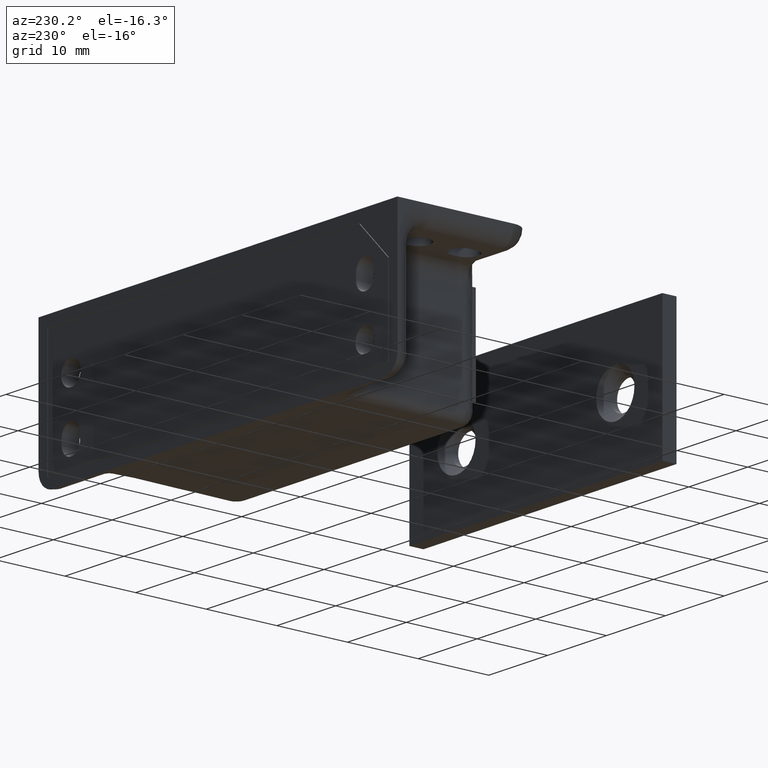
[diagram: clean part render]
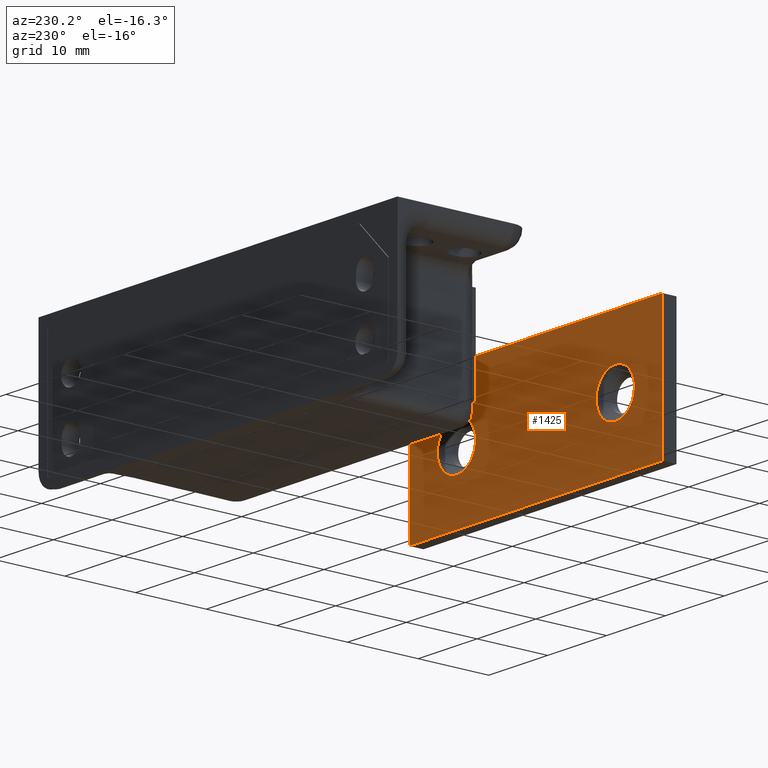
[diagram: same view with one face highlighted and labeled with its STEP entity id]
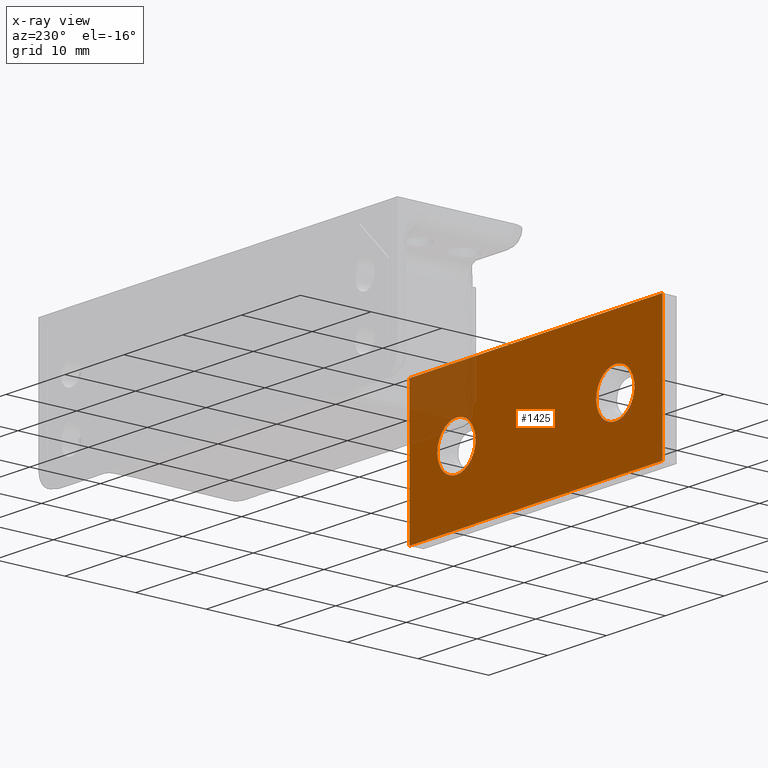
[diagram: x-ray of the same camera — body ghosted, the highlighted face saturated]
A machine part, auxiliary view. The second image highlights one B-rep face of the part: STEP entity #1425.
The next image is the same camera in x-ray: the body ghosted, the highlighted face saturated — about 11% of this face is hidden behind the body in this view.
In plain terms, the highlighted face is a freeform B-spline surface patch.
Its self-contained STEP definition (entity closure, byte-faithful):
#715=CARTESIAN_POINT('',(-11.222045059124790,-45.000000079943341,-2.318063788691977));
#716=VERTEX_POINT('',#715);
#722=CARTESIAN_POINT('',(-13.500000000000160,-44.999999999999957,-3.249999999999874));
#723=VERTEX_POINT('',#722);
#724=CARTESIAN_POINT('',(-13.500000000000160,-44.999999999999957,-3.249999999999874));
#725=CARTESIAN_POINT('',(-13.184461477765790,-45.000000011073581,-3.250127160377355));
#726=CARTESIAN_POINT('',(-12.671823393381390,-45.000000029064289,-3.174725389047770));
#727=CARTESIAN_POINT('',(-11.887910845816380,-45.000000056575203,-2.859529037752179));
#728=CARTESIAN_POINT('',(-11.456367761265380,-45.000000071719938,-2.548575349588518));
#729=CARTESIAN_POINT('',(-11.222045059124790,-45.000000079943341,-2.318063788691977));
#730=B_SPLINE_CURVE_WITH_KNOTS('',3,(#724,#725,#726,#727,#728,#729),.UNSPECIFIED.,.F.,.U.,(4,1,1,4),(0.000000021588629,0.946574546464391,1.538175193060793,2.524197825732992),.UNSPECIFIED.);
#731=EDGE_CURVE('',#723,#716,#730,.T.);
#733=CARTESIAN_POINT('',(-16.750000000000139,-44.999999999999957,-0.000000639644295));
#734=VERTEX_POINT('',#733);
#735=CARTESIAN_POINT('',(-16.750000000000139,-44.999999999999957,-0.000000639644295));
#736=CARTESIAN_POINT('',(-16.750265168047470,-44.999999999999957,-0.372277736585216));
#737=CARTESIAN_POINT('',(-16.634499239561940,-44.999999999999957,-1.036828920619220));
#738=CARTESIAN_POINT('',(-16.220525442184830,-44.999999999999957,-1.834706616000934));
#739=CARTESIAN_POINT('',(-15.789590730326990,-44.999999999999957,-2.327960282632077));
#740=CARTESIAN_POINT('',(-15.336574509738810,-44.999999999999957,-2.699776132834221));
#741=CARTESIAN_POINT('',(-14.884575278396500,-44.999999999999957,-2.959500030471107));
#742=CARTESIAN_POINT('',(-14.244439063898200,-44.999999999999957,-3.188543612609837));
#743=CARTESIAN_POINT('',(-13.792491613064239,-44.999999999999957,-3.250102581651386));
#744=CARTESIAN_POINT('',(-13.500000000000160,-44.999999999999957,-3.249999999999874));
#745=B_SPLINE_CURVE_WITH_KNOTS('',3,(#735,#736,#737,#738,#739,#740,#741,#742,#743,#744),.UNSPECIFIED.,.F.,.U.,(4,1,1,1,1,1,1,4),(0.000000082317197,1.116743867929097,1.994192877790320,2.672207543361630,3.071031397864549,3.749071131874854,4.227682477132281,5.105119733833083),.UNSPECIFIED.);
#746=EDGE_CURVE('',#734,#723,#745,.T.);
#748=CARTESIAN_POINT('',(-15.777954940875530,-45.000000079943341,2.318063788692324));
#749=VERTEX_POINT('',#748);
#750=CARTESIAN_POINT('',(-15.777954940875530,-45.000000079943341,2.318063788692324));
#751=CARTESIAN_POINT('',(-15.960169116024931,-45.000000073771020,2.139089112168543));
#752=CARTESIAN_POINT('',(-16.222700779485471,-45.000000062482350,1.811759072384379));
#753=CARTESIAN_POINT('',(-16.536309829942610,-45.000000041907910,1.215175949524439));
#754=CARTESIAN_POINT('',(-16.711408640178810,-45.000000021788580,0.631789270389717));
#755=CARTESIAN_POINT('',(-16.750006253295432,-45.000000006490048,0.188188104803100));
#756=CARTESIAN_POINT('',(-16.750000000000139,-44.999999999999957,-0.000000639644295));
#757=B_SPLINE_CURVE_WITH_KNOTS('',3,(#750,#751,#752,#753,#754,#755,#756),.UNSPECIFIED.,.F.,.U.,(4,1,1,1,4),(0.000000021220046,0.766214200782917,1.250146628703569,2.016346844209850,2.580922731730874),.UNSPECIFIED.);
#758=EDGE_CURVE('',#749,#734,#757,.T.);
#859=CARTESIAN_POINT('',(-13.500000000000160,-44.999999999999957,3.250000000000215));
#860=VERTEX_POINT('',#859);
#861=CARTESIAN_POINT('',(-13.500000000000160,-44.999999999999957,3.250000000000215));
#862=CARTESIAN_POINT('',(-13.723497436870510,-45.000000007843461,3.250032654851196));
#863=CARTESIAN_POINT('',(-14.131040294981290,-45.000000022145919,3.207791556805104));
#864=CARTESIAN_POINT('',(-14.661855153485099,-45.000000040774530,3.048654582579068));
#865=CARTESIAN_POINT('',(-15.221384532934721,-45.000000060410862,2.783247290525638));
#866=CARTESIAN_POINT('',(-15.571719181428939,-45.000000072705632,2.520865641263543));
#867=CARTESIAN_POINT('',(-15.777954940875530,-45.000000079943341,2.318063788692324));
#868=B_SPLINE_CURVE_WITH_KNOTS('',3,(#861,#862,#863,#864,#865,#866,#867),.UNSPECIFIED.,.F.,.U.,(4,1,1,1,4),(0.000000021589997,0.670490830031464,1.222671377158269,1.656500684397272,2.524197825732984),.UNSPECIFIED.);
#869=EDGE_CURVE('',#860,#749,#868,.T.);
#871=CARTESIAN_POINT('',(-10.250000000000179,-44.999999999999957,0.000000639644660));
#872=VERTEX_POINT('',#871);
#873=CARTESIAN_POINT('',(-10.250000000000179,-44.999999999999957,0.000000639644660));
#874=CARTESIAN_POINT('',(-10.249990514637020,-44.999999999999957,0.186122968574985));
#875=CARTESIAN_POINT('',(-10.285484498345310,-44.999999999999957,0.598249134825735));
#876=CARTESIAN_POINT('',(-10.482182501338650,-44.999999999999957,1.292773976760297));
#877=CARTESIAN_POINT('',(-10.856792939907301,-44.999999999999957,1.944726043222723));
#878=CARTESIAN_POINT('',(-11.317467329754500,-44.999999999999957,2.428405005058954));
#879=CARTESIAN_POINT('',(-11.786218530471700,-44.999999999999957,2.780550973535963));
#880=CARTESIAN_POINT('',(-12.226602676406310,-44.999999999999957,3.005634957701986));
#881=CARTESIAN_POINT('',(-12.822027171042439,-44.999999999999957,3.198264480751728));
#882=CARTESIAN_POINT('',(-13.220804778488910,-44.999999999999957,3.250096567917749));
#883=CARTESIAN_POINT('',(-13.500000000000160,-44.999999999999957,3.250000000000215));
#884=B_SPLINE_CURVE_WITH_KNOTS('',3,(#873,#874,#875,#876,#877,#878,#879,#880,#881,#882,#883),.UNSPECIFIED.,.F.,.U.,(4,1,1,1,1,1,1,1,4),(0.000000082319544,0.558371981313189,1.236395586512447,2.153742586015716,2.791855049923331,3.230582721293282,3.908608507970950,4.267571427410125,5.105119733833067),.UNSPECIFIED.);
#885=EDGE_CURVE('',#872,#860,#884,.T.);
#887=CARTESIAN_POINT('',(-11.222045059124790,-45.000000079943341,-2.318063788691977));
#888=CARTESIAN_POINT('',(-11.039832272305750,-45.000000073770977,-2.139088052094276));
#889=CARTESIAN_POINT('',(-10.743405558940820,-45.000000061026213,-1.769536379262799));
#890=CARTESIAN_POINT('',(-10.468038220894551,-45.000000041815227,-1.212488594156818));
#891=CARTESIAN_POINT('',(-10.293749843719660,-45.000000021787763,-0.631765384513907));
#892=CARTESIAN_POINT('',(-10.249950106138069,-45.000000008344628,-0.241964070200331));
#893=CARTESIAN_POINT('',(-10.250000000000179,-44.999999999999957,0.000000639644660));
#894=B_SPLINE_CURVE_WITH_KNOTS('',3,(#887,#888,#889,#890,#891,#892,#893),.UNSPECIFIED.,.F.,.U.,(4,1,1,1,4),(0.000000021219997,0.766214200783234,1.411441084101627,1.855037263983487,2.580922731730893),.UNSPECIFIED.);
#895=EDGE_CURVE('',#716,#872,#894,.T.);
#920=CARTESIAN_POINT('',(15.777954940875130,-45.000000079943341,-2.318063788692092));
#921=VERTEX_POINT('',#920);
#927=CARTESIAN_POINT('',(13.499999999999760,-44.999999999999957,-3.249999999999988));
#928=VERTEX_POINT('',#927);
#929=CARTESIAN_POINT('',(13.499999999999760,-44.999999999999957,-3.249999999999988));
#930=CARTESIAN_POINT('',(13.868164128547610,-45.000000012920452,-3.250283679674320));
#931=CARTESIAN_POINT('',(14.393831257459860,-45.000000031368401,-3.159639144025503));
#932=CARTESIAN_POINT('',(15.166688473659020,-45.000000058491331,-2.821332943251791));
#933=CARTESIAN_POINT('',(15.552984808613450,-45.000000072048159,-2.539320577579133));
#934=CARTESIAN_POINT('',(15.777954940875130,-45.000000079943341,-2.318063788692092));
#935=B_SPLINE_CURVE_WITH_KNOTS('',3,(#929,#930,#931,#932,#933,#934),.UNSPECIFIED.,.F.,.U.,(4,1,1,4),(0.000000021588973,1.104347709905555,1.577623300870940,2.524197825732988),.UNSPECIFIED.);
#936=EDGE_CURVE('',#928,#921,#935,.T.);
#938=CARTESIAN_POINT('',(10.249999999999780,-44.999999999999957,-0.000000639644410));
#939=VERTEX_POINT('',#938);
#940=CARTESIAN_POINT('',(10.249999999999780,-44.999999999999957,-0.000000639644410));
#941=CARTESIAN_POINT('',(10.249963421555210,-44.999999999999957,-0.226008890386178));
#942=CARTESIAN_POINT('',(10.291785818497480,-44.999999999999957,-0.624824208086963));
#943=CARTESIAN_POINT('',(10.481384267515219,-44.999999999999957,-1.264159676914660));
#944=CARTESIAN_POINT('',(10.797101120177789,-44.999999999999957,-1.854810319613314));
#945=CARTESIAN_POINT('',(11.280727419874809,-44.999999999999957,-2.408530122780424));
#946=CARTESIAN_POINT('',(11.893085282511141,-44.999999999999957,-2.862773786528528));
#947=CARTESIAN_POINT('',(12.649169207564080,-44.999999999999957,-3.175917170983239));
#948=CARTESIAN_POINT('',(13.220814793185379,-44.999999999999957,-3.250073489885173));
#949=CARTESIAN_POINT('',(13.499999999999760,-44.999999999999957,-3.249999999999988));
#950=B_SPLINE_CURVE_WITH_KNOTS('',3,(#940,#941,#942,#943,#944,#945,#946,#947,#948,#949),.UNSPECIFIED.,.F.,.U.,(4,1,1,1,1,1,1,4),(0.000000082319564,0.678019917295202,1.196511575425184,1.994192877791171,2.672207543362048,3.390108212445198,4.267571427410103,5.105119733833092),.UNSPECIFIED.);
#951=EDGE_CURVE('',#939,#928,#950,.T.);
#953=CARTESIAN_POINT('',(11.222045059124390,-45.000000079943341,2.318063788692210));
#954=VERTEX_POINT('',#953);
#955=CARTESIAN_POINT('',(11.222045059124390,-45.000000079943341,2.318063788692210));
#956=CARTESIAN_POINT('',(11.097402140827850,-45.000000075719470,2.195587040801784));
#957=CARTESIAN_POINT('',(10.823770672482750,-45.000000064818259,1.879491892194532));
#958=CARTESIAN_POINT('',(10.534201968921581,-45.000000047422873,1.375089511545744));
#959=CARTESIAN_POINT('',(10.308171145485851,-45.000000025031980,0.725836030300936));
#960=CARTESIAN_POINT('',(10.249918742941871,-45.000000009735572,0.282296252959843));
#961=CARTESIAN_POINT('',(10.249999999999780,-44.999999999999957,-0.000000639644410));
#962=B_SPLINE_CURVE_WITH_KNOTS('',3,(#955,#956,#957,#958,#959,#960,#961),.UNSPECIFIED.,.F.,.U.,(4,1,1,1,4),(0.000000021220425,0.524247196894680,1.250146628704092,1.734054433540918,2.580922731730863),.UNSPECIFIED.);
#963=EDGE_CURVE('',#954,#939,#962,.T.);
#1066=CARTESIAN_POINT('',(13.499999999999760,-44.999999999999957,3.250000000000102));
#1067=VERTEX_POINT('',#1066);
#1068=CARTESIAN_POINT('',(13.499999999999760,-44.999999999999957,3.250000000000102));
#1069=CARTESIAN_POINT('',(13.237055344880410,-45.000000009227833,3.250061653743761));
#1070=CARTESIAN_POINT('',(12.842685460796501,-45.000000023067997,3.201863430864038));
#1071=CARTESIAN_POINT('',(12.277054660651901,-45.000000042918451,3.024780318514063));
#1072=CARTESIAN_POINT('',(11.755306327663449,-45.000000061228867,2.769494415860082));
#1073=CARTESIAN_POINT('',(11.400177414291401,-45.000000073691901,2.493177246440244));
#1074=CARTESIAN_POINT('',(11.222045059124390,-45.000000079943341,2.318063788692210));
#1075=B_SPLINE_CURVE_WITH_KNOTS('',3,(#1068,#1069,#1070,#1071,#1072,#1073,#1074),.UNSPECIFIED.,.F.,.U.,(4,1,1,1,4),(0.000000021588046,0.788815593540211,1.183227439918211,1.774825484923241,2.524197825732991),.UNSPECIFIED.);
#1076=EDGE_CURVE('',#1067,#954,#1075,.T.);
#1078=CARTESIAN_POINT('',(16.749999999999741,-44.999999999999957,0.000000639644542));
#1079=VERTEX_POINT('',#1078);
#1080=CARTESIAN_POINT('',(16.749999999999741,-44.999999999999957,0.000000639644542));
#1081=CARTESIAN_POINT('',(16.750022796431701,-44.999999999999957,0.212708703848546));
#1082=CARTESIAN_POINT('',(16.705487873527229,-44.999999999999957,0.664721832489813));
#1083=CARTESIAN_POINT('',(16.515636956019989,-44.999999999999957,1.264020716561061));
#1084=CARTESIAN_POINT('',(16.191324609250572,-44.999999999999957,1.861929784259768));
#1085=CARTESIAN_POINT('',(15.786027751574521,-44.999999999999957,2.343653483992732));
#1086=CARTESIAN_POINT('',(15.323114100021900,-44.999999999999957,2.704807558292470));
#1087=CARTESIAN_POINT('',(14.813215580504270,-44.999999999999957,2.993739678289158));
#1088=CARTESIAN_POINT('',(14.217908728461261,-44.999999999999957,3.198525875141952));
#1089=CARTESIAN_POINT('',(13.726004926254880,-44.999999999999957,3.250022240779861));
#1090=CARTESIAN_POINT('',(13.499999999999760,-44.999999999999957,3.250000000000102));
#1091=B_SPLINE_CURVE_WITH_KNOTS('',3,(#1080,#1081,#1082,#1083,#1084,#1085,#1086,#1087,#1088,#1089,#1090),.UNSPECIFIED.,.F.,.U.,(4,1,1,1,1,1,1,1,4),(0.000000082319130,0.638128034098369,1.356048898371060,1.874536917344452,2.672207543362038,3.230582721293257,3.629416961037740,4.427096919287699,5.105119733833071),.UNSPECIFIED.);
#1092=EDGE_CURVE('',#1079,#1067,#1091,.T.);
#1094=CARTESIAN_POINT('',(15.777954940875130,-45.000000079943341,-2.318063788692092));
#1095=CARTESIAN_POINT('',(15.950570144113410,-45.000000074095723,-2.148504277078790));
#1096=CARTESIAN_POINT('',(16.214963678950330,-45.000000062871770,-1.823050928299094));
#1097=CARTESIAN_POINT('',(16.506995464268179,-45.000000043996238,-1.275729784443599));
#1098=CARTESIAN_POINT('',(16.700223829327150,-45.000000023641967,-0.685530777309256));
#1099=CARTESIAN_POINT('',(16.750048051697618,-45.000000008344621,-0.241963855505791));
#1100=CARTESIAN_POINT('',(16.749999999999741,-44.999999999999957,0.000000639644542));
#1101=B_SPLINE_CURVE_WITH_KNOTS('',3,(#1094,#1095,#1096,#1097,#1098,#1099,#1100),.UNSPECIFIED.,.F.,.U.,(4,1,1,1,4),(0.000000021219424,0.725885488954059,1.250146628703533,1.855037263983280,2.580922731730894),.UNSPECIFIED.);
#1102=EDGE_CURVE('',#921,#1079,#1101,.T.);
#1374=CARTESIAN_POINT('',(-23.647849916657641,-44.999999999999957,10.449049963154650));
#1375=CARTESIAN_POINT('',(23.647851070007270,-44.999999999999957,10.449049963154650));
#1376=CARTESIAN_POINT('',(-23.647849916657648,-44.999999999999957,-10.449050472813850));
#1377=CARTESIAN_POINT('',(23.647851070007270,-44.999999999999957,-10.449050472813850));
#1378=B_SPLINE_SURFACE_WITH_KNOTS('',1,1,((#1374,#1376),(#1375,#1377)),.UNSPECIFIED.,.F.,.F.,.U.,(2,2),(2,2),(0.0,47.295700986664919),(0.0,20.898100435968502),.UNSPECIFIED.);
#1379=CARTESIAN_POINT('',(-21.500000000000000,-45.0,-9.500000000019670));
#1380=VERTEX_POINT('',#1379);
#1381=CARTESIAN_POINT('',(-21.500000000000000,-45.0,9.499999999980332));
#1382=VERTEX_POINT('',#1381);
#1383=CARTESIAN_POINT('',(-21.500000000000000,-45.0,-9.500000000019670));
#1384=CARTESIAN_POINT('',(-21.500000000000000,-45.0,9.499999999980332));
#1385=QUASI_UNIFORM_CURVE('',1,(#1383,#1384),.UNSPECIFIED.,.F.,.U.);
#1386=EDGE_CURVE('',#1380,#1382,#1385,.T.);
#1387=ORIENTED_EDGE('',*,*,#1386,.T.);
#1388=CARTESIAN_POINT('',(21.499999999999751,-45.0,9.499999999980281));
#1389=VERTEX_POINT('',#1388);
#1390=CARTESIAN_POINT('',(-21.500000000000000,-45.0,9.499999999980332));
#1391=CARTESIAN_POINT('',(21.499999999999751,-45.0,9.499999999980281));
#1392=QUASI_UNIFORM_CURVE('',1,(#1390,#1391),.UNSPECIFIED.,.F.,.U.);
#1393=EDGE_CURVE('',#1382,#1389,#1392,.T.);
#1394=ORIENTED_EDGE('',*,*,#1393,.T.);
#1395=CARTESIAN_POINT('',(21.499999999999751,-45.0,-9.500000000019810));
#1396=VERTEX_POINT('',#1395);
#1397=CARTESIAN_POINT('',(21.499999999999751,-45.0,9.499999999980281));
#1398=CARTESIAN_POINT('',(21.499999999999751,-45.0,-9.500000000019810));
#1399=QUASI_UNIFORM_CURVE('',1,(#1397,#1398),.UNSPECIFIED.,.F.,.U.);
#1400=EDGE_CURVE('',#1389,#1396,#1399,.T.);
#1401=ORIENTED_EDGE('',*,*,#1400,.T.);
#1402=CARTESIAN_POINT('',(21.499999999999751,-45.0,-9.500000000019810));
#1403=CARTESIAN_POINT('',(-21.500000000000000,-45.0,-9.500000000019670));
#1404=QUASI_UNIFORM_CURVE('',1,(#1402,#1403),.UNSPECIFIED.,.F.,.U.);
#1405=EDGE_CURVE('',#1396,#1380,#1404,.T.);
#1406=ORIENTED_EDGE('',*,*,#1405,.T.);
#1407=EDGE_LOOP('',(#1387,#1394,#1401,#1406));
#1408=FACE_OUTER_BOUND('',#1407,.T.);
#1409=ORIENTED_EDGE('',*,*,#746,.T.);
#1410=ORIENTED_EDGE('',*,*,#731,.T.);
#1411=ORIENTED_EDGE('',*,*,#895,.T.);
#1412=ORIENTED_EDGE('',*,*,#885,.T.);
#1413=ORIENTED_EDGE('',*,*,#869,.T.);
#1414=ORIENTED_EDGE('',*,*,#758,.T.);
#1415=EDGE_LOOP('',(#1409,#1410,#1411,#1412,#1413,#1414));
#1416=FACE_BOUND('',#1415,.T.);
#1417=ORIENTED_EDGE('',*,*,#951,.T.);
#1418=ORIENTED_EDGE('',*,*,#936,.T.);
#1419=ORIENTED_EDGE('',*,*,#1102,.T.);
#1420=ORIENTED_EDGE('',*,*,#1092,.T.);
#1421=ORIENTED_EDGE('',*,*,#1076,.T.);
#1422=ORIENTED_EDGE('',*,*,#963,.T.);
#1423=EDGE_LOOP('',(#1417,#1418,#1419,#1420,#1421,#1422));
#1424=FACE_BOUND('',#1423,.T.);
#1425=ADVANCED_FACE('',(#1408,#1416,#1424),#1378,.T.);